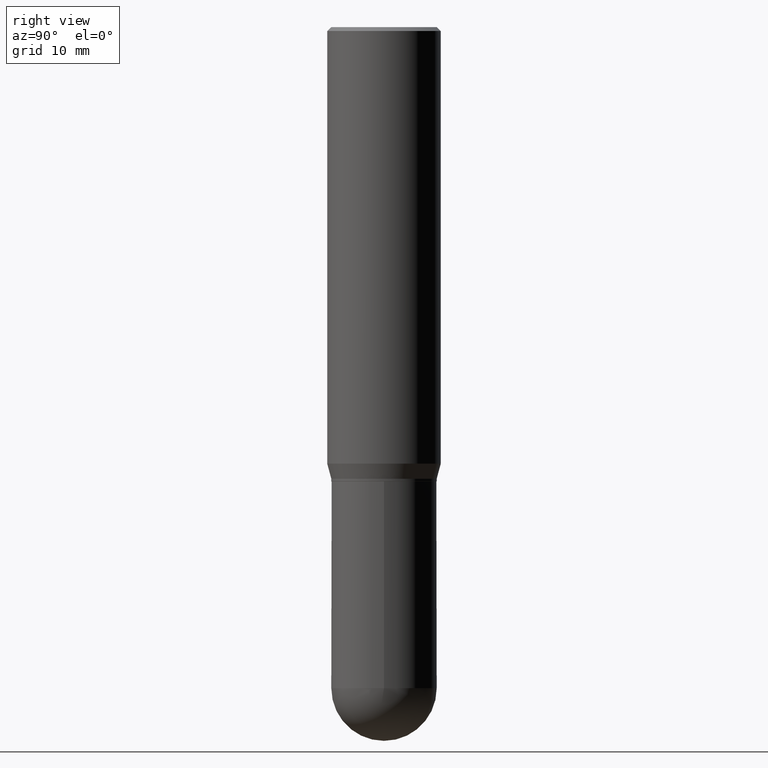
[diagram: clean part render]
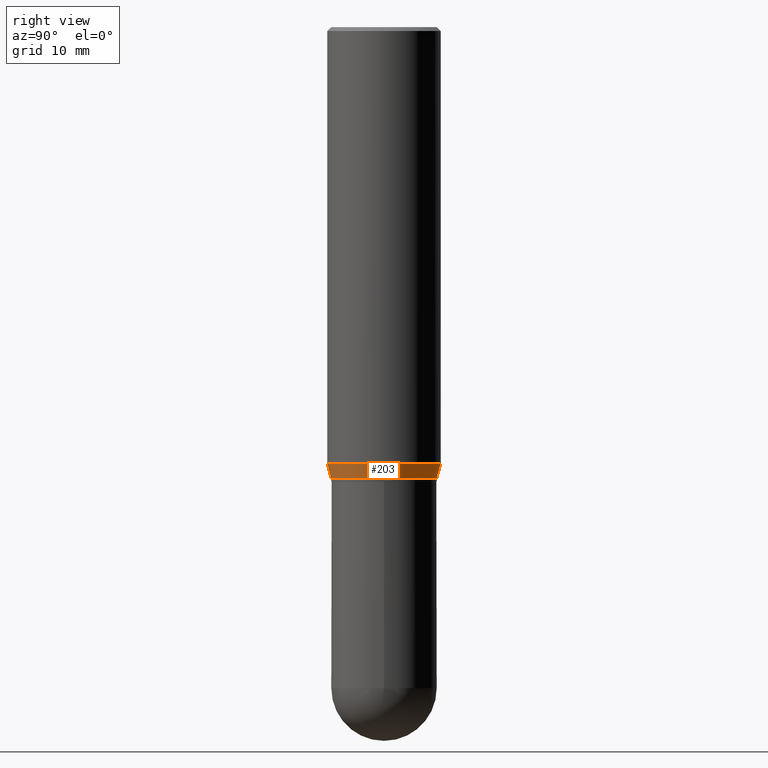
[diagram: same view with one face highlighted and labeled with its STEP entity id]
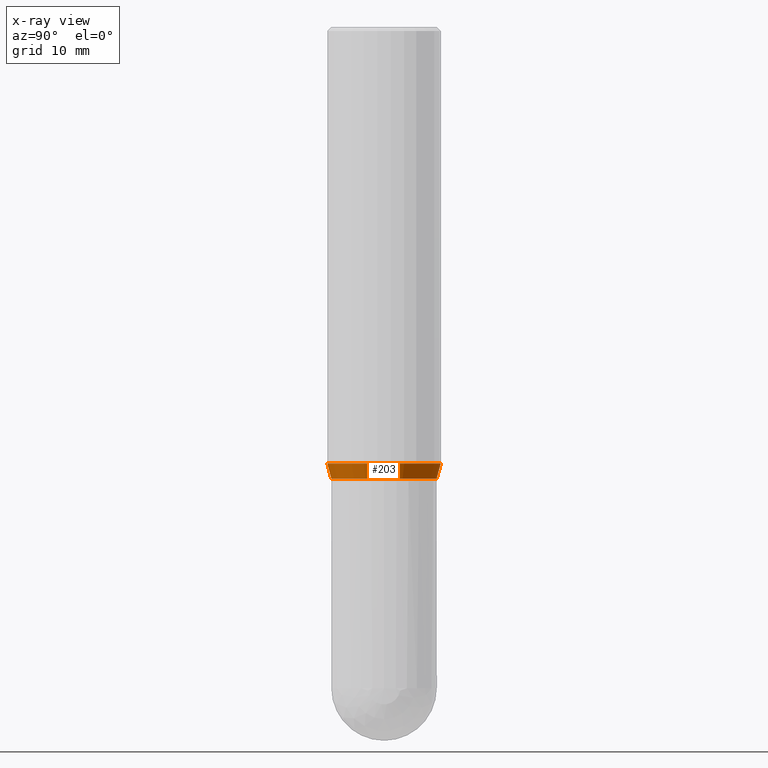
[diagram: x-ray of the same camera — body ghosted, the highlighted face saturated]
A machine part, right view. The second image highlights one B-rep face of the part: STEP entity #203.
The next image is the same camera in x-ray: the body ghosted, the highlighted face saturated — about 0% of this face is hidden behind the body in this view.
In plain terms, the highlighted conical surface has half-angle 15 deg.
Its self-contained STEP definition (entity closure, byte-faithful):
#9 = EDGE_CURVE ( 'NONE', #55, #154, #96, .T. ) ;
#20 = VERTEX_POINT ( 'NONE', #364 ) ;
#42 = CARTESIAN_POINT ( 'NONE',  ( 1.554312234475260177E-15, 0.2187499999999941436, -1.681593404861547958 ) ) ;
#55 = VERTEX_POINT ( 'NONE', #490 ) ;
#62 = ORIENTED_EDGE ( 'NONE', *, *, #475, .F. ) ;
#96 = LINE ( 'NONE', #338, #417 ) ;
#110 = FACE_OUTER_BOUND ( 'NONE', #297, .T. ) ;
#125 = CIRCLE ( 'NONE', #185, 0.2030999999999999472 ) ;
#134 = AXIS2_PLACEMENT_3D ( 'NONE', #156, #401, #163 ) ;
#147 = CARTESIAN_POINT ( 'NONE',  ( -1.418239719838037782E-15, -0.2031000000000060257, -1.739999999999999103 ) ) ;
#154 = VERTEX_POINT ( 'NONE', #42 ) ;
#156 = CARTESIAN_POINT ( 'NONE',  ( 4.112217053294172949E-29, -5.871348173807832947E-15, -1.681593404861547070 ) ) ;
#163 = DIRECTION ( 'NONE',  ( -6.982962677686265133E-15, -1.000000000000000000, 3.746534391310989557E-15 ) ) ;
#185 = AXIS2_PLACEMENT_3D ( 'NONE', #336, #498, #339 ) ;
#192 = LINE ( 'NONE', #439, #349 ) ;
#199 = EDGE_CURVE ( 'NONE', #269, #55, #125, .T. ) ;
#203 = ADVANCED_FACE ( 'NONE', ( #110 ), #309, .T. ) ;
#233 = ORIENTED_EDGE ( 'NONE', *, *, #199, .T. ) ;
#237 = DIRECTION ( 'NONE',  ( -1.807323732225330928E-15, -0.2588190451025182970, 0.9659258262890689783 ) ) ;
#256 = DIRECTION ( 'NONE',  ( 1.839019923739601104E-15, 0.2588190451025250693, 0.9659258262890670910 ) ) ;
#269 = VERTEX_POINT ( 'NONE', #147 ) ;
#279 = ORIENTED_EDGE ( 'NONE', *, *, #9, .T. ) ;
#297 = EDGE_LOOP ( 'NONE', ( #233, #279, #375, #62 ) ) ;
#301 = CIRCLE ( 'NONE', #134, 0.2187500000000000000 ) ;
#302 = DIRECTION ( 'NONE',  ( -6.982962677686266711E-15, -1.000000000000000000, 4.035225987687243463E-15 ) ) ;
#309 = CONICAL_SURFACE ( 'NONE', #463, 0.2030999999999999472, 0.2617993877991502960 ) ;
#336 = CARTESIAN_POINT ( 'NONE',  ( 4.255046227016444789E-29, -6.075277051450358762E-15, -1.739999999999999991 ) ) ;
#338 = CARTESIAN_POINT ( 'NONE',  ( 1.443112296328805307E-15, 0.2030999999999938688, -1.740000000000000879 ) ) ;
#339 = DIRECTION ( 'NONE',  ( -6.982962677686266711E-15, -1.000000000000000000, 4.035225987687243463E-15 ) ) ;
#349 = VECTOR ( 'NONE', #237, 39.37007874015748143 ) ;
#364 = CARTESIAN_POINT ( 'NONE',  ( -1.527523085743829428E-15, -0.2187500000000058287, -1.681593404861546404 ) ) ;
#375 = ORIENTED_EDGE ( 'NONE', *, *, #497, .F. ) ;
#401 = DIRECTION ( 'NONE',  ( -2.445428866101404443E-29, 3.491538535316298316E-15, 1.000000000000000000 ) ) ;
#417 = VECTOR ( 'NONE', #256, 39.37007874015748143 ) ;
#418 = CARTESIAN_POINT ( 'NONE',  ( 4.255046227016444789E-29, -6.075277051450358762E-15, -1.739999999999999991 ) ) ;
#439 = CARTESIAN_POINT ( 'NONE',  ( -1.418239719838037782E-15, -0.2031000000000060257, -1.739999999999999103 ) ) ;
#463 = AXIS2_PLACEMENT_3D ( 'NONE', #418, #493, #302 ) ;
#475 = EDGE_CURVE ( 'NONE', #269, #20, #192, .T. ) ;
#490 = CARTESIAN_POINT ( 'NONE',  ( 1.498712265402032742E-15, 0.2030999999999938688, -1.740000000000000879 ) ) ;
#493 = DIRECTION ( 'NONE',  ( -2.445428866101404443E-29, 3.491538535316298316E-15, 1.000000000000000000 ) ) ;
#497 = EDGE_CURVE ( 'NONE', #20, #154, #301, .T. ) ;
#498 = DIRECTION ( 'NONE',  ( -2.445428866101404443E-29, 3.491538535316298316E-15, 1.000000000000000000 ) ) ;